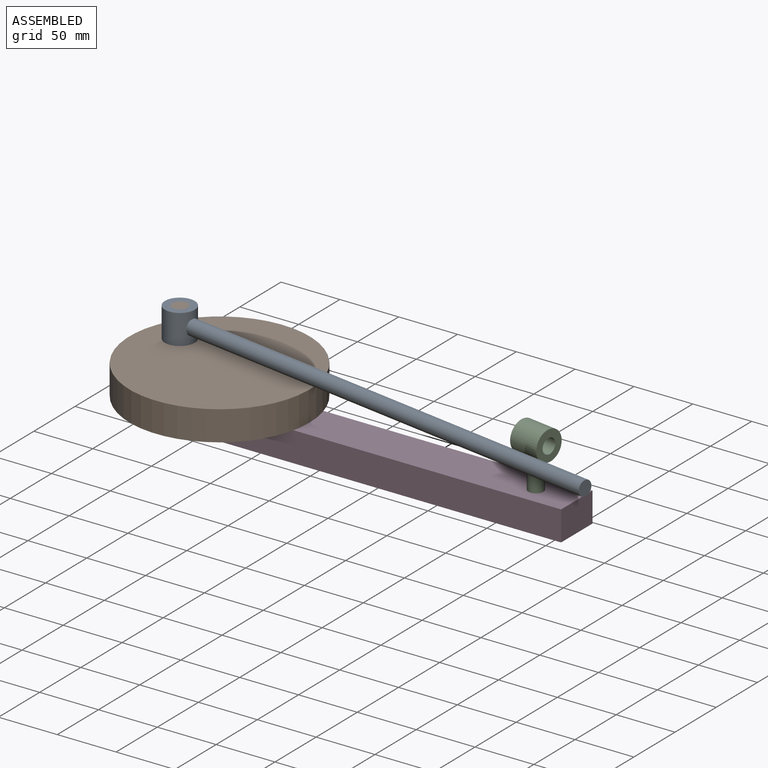
[diagram: assembled view]
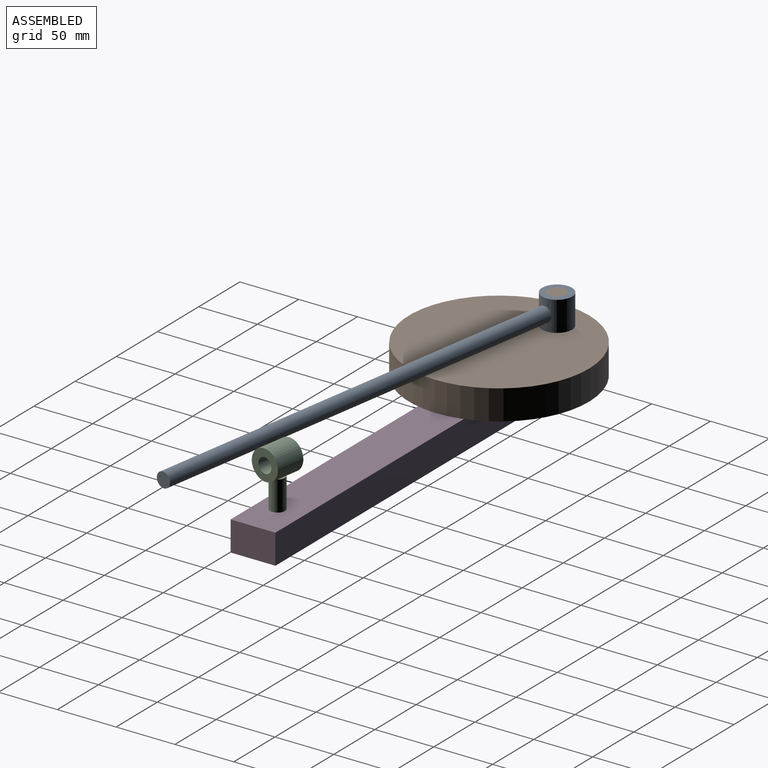
[diagram: assembled view, second angle]
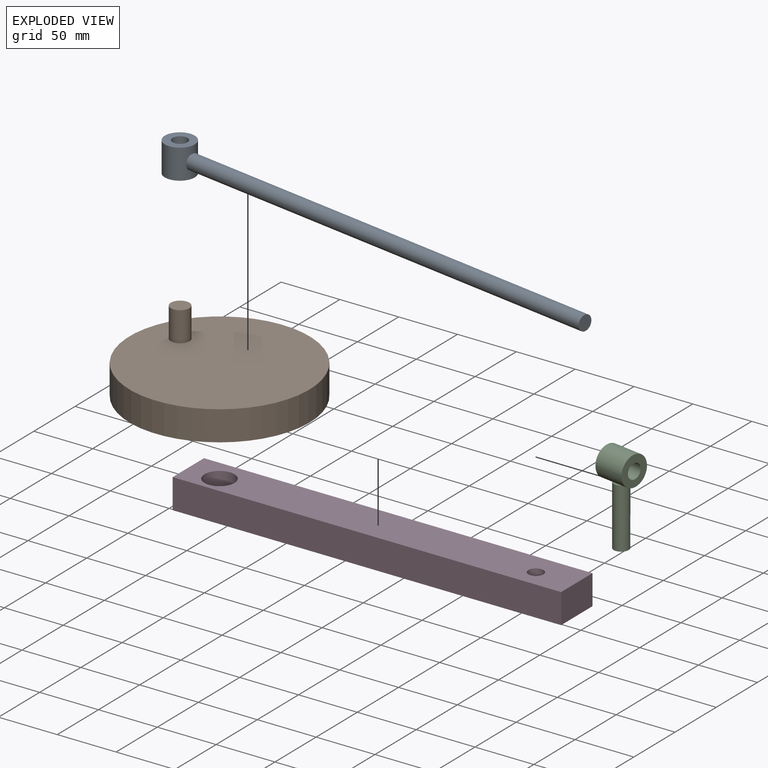
[diagram: exploded view]
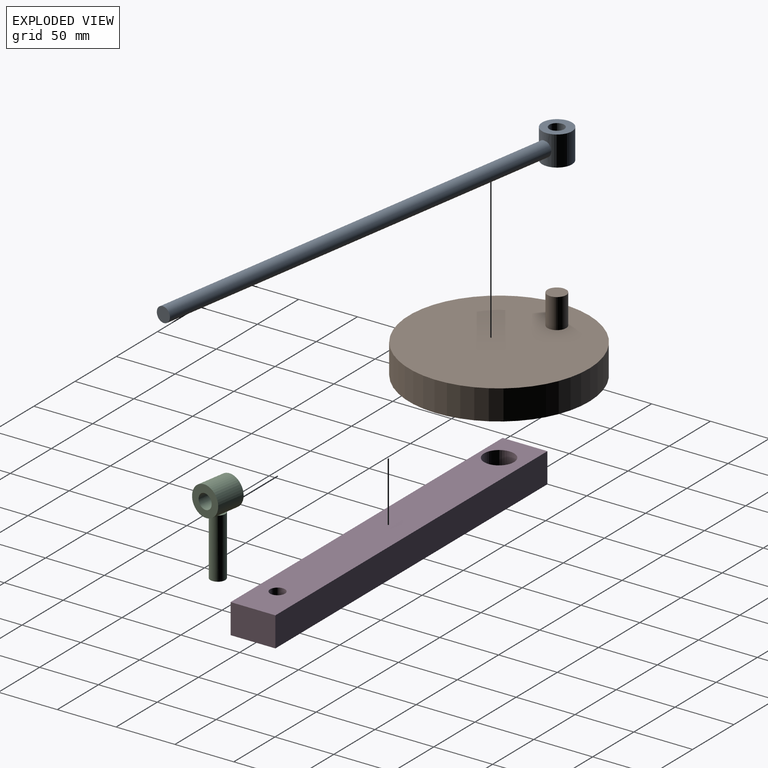
[diagram: exploded view, second angle]
ASSEMBLY  parts=4 mates=3
PART A: 8 faces, bbox 25.4x25.4x406.1 mm
  f0: cylinder r=6.35mm len=381mm, axis (0,0,1), area 15198.8mm2, adj f1,f2,f3,f4
  f1: plane 11.38x3.53mm, normal (0,0,1), area 28.7mm2, adj f0,f4
  f2: plane 11.38x3.53mm, normal (0,0,1), area 28.7mm2, adj f0,f4
  f3: plane 12.7x12.7mm, normal (0,0,-1), area 126.7mm2, adj f0
  f4: cylinder r=12.7mm len=25.4mm, axis (0,1,0), area 1957mm2, adj f0,f1,f2,f5,f6
  f5: plane 25.4x25.4mm, normal (0,-1,0), area 380mm2, adj f4,f7
  f6: plane 25.4x25.4mm, normal (0,1,0), area 380mm2, adj f4,f7
  f7: cylinder r=6.35mm len=25.4mm, axis (0,-1,0), area 1013.4mm2, adj f5,f6
PART B: 7 faces, bbox 153x153x76.2 mm
  f0: cylinder r=76.52mm len=153.04mm, axis (0,0,-1), area 12211.9mm2, adj f1,f2
  f1: plane 153.04x153.04mm, normal (0,0,1), area 18196.6mm2, adj f0,f3
  f2: plane 153.04x153.04mm, normal (0,0,-1), area 17887.9mm2, adj f0,f5
  f3: cylinder r=7.94mm len=25.4mm, axis (0,0,-1), area 1266.8mm2, adj f1,f4
  f4: plane 15.88x15.88mm, normal (0,0,1), area 197.9mm2, adj f3
  f5: cylinder r=12.7mm len=25.4mm, axis (0,0,1), area 2026.8mm2, adj f2,f6
  f6: plane 25.4x25.4mm, normal (0,0,-1), area 506.7mm2, adj f5
PART C: 8 faces, bbox 25.4x25.4x75.9 mm
  f0: cylinder r=6.35mm len=50.8mm, axis (0,0,1), area 2024.4mm2, adj f1,f2,f3,f4
  f1: plane 11.38x3.53mm, normal (0,0,1), area 28.7mm2, adj f0,f4
  f2: plane 11.38x3.53mm, normal (0,0,1), area 28.7mm2, adj f0,f4
  f3: plane 12.7x12.7mm, normal (0,0,-1), area 126.7mm2, adj f0
  f4: cylinder r=12.7mm len=25.4mm, axis (0,1,0), area 1957mm2, adj f0,f1,f2,f5,f6
  f5: plane 25.4x25.4mm, normal (0,-1,0), area 380mm2, adj f4,f7
  f6: plane 25.4x25.4mm, normal (0,1,0), area 380mm2, adj f4,f7
  f7: cylinder r=6.35mm len=25.4mm, axis (0,-1,0), area 1013.4mm2, adj f5,f6
PART D: 8 faces, bbox 330.2x38.1x25.4 mm
  f0: plane 330.2x25.4mm, normal (0,1,0), area 8387.1mm2, adj f1,f3,f4,f5
  f1: plane 38.1x25.4mm, normal (-1,0,0), area 967.7mm2, adj f0,f2,f4,f5
  f2: plane 330.2x25.4mm, normal (0,-1,0), area 8387.1mm2, adj f1,f3,f4,f5
  f3: plane 38.1x25.4mm, normal (1,0,0), area 967.7mm2, adj f0,f2,f4,f5
  f4: plane 330.2x38.1mm, normal (0,0,1), area 11947.2mm2, adj f0,f1,f2,f3,f6,f7
  f5: plane 330.2x38.1mm, normal (0,0,-1), area 11947.2mm2, adj f0,f1,f2,f3,f6,f7
  f6: cylinder r=6.35mm len=25.4mm, axis (0,0,-1), area 1013.4mm2, adj f4,f5
  f7: cylinder r=12.7mm len=25.4mm, axis (0,0,-1), area 2026.8mm2, adj f4,f5
PLACE A rot(axis=(0.52,-0.61,-0.61),125.4deg) t=(-143.3,-31.1,49.41)mm
PLACE B rot(axis=(0,0,1),22deg) t=(-109.72,-46.35,11.31)mm
PLACE C rot(axis=(0,0,-1),99.2deg) t=(159.18,-46.35,36.71)mm
PLACE D t=(25.35,-46.35,-1.39)mm fixed
MATE revolute C.f0 <-> D.f6  axis (0,0,-1) through (159.18,-46.35,-14.09)mm
MATE revolute B.f5 <-> D.f7  axis (0,0,-1) through (-109.72,-46.35,-14.09)mm
MATE revolute A.f7 <-> B.f3  axis (0,0,1) through (-155.26,-29.17,62.11)mm
